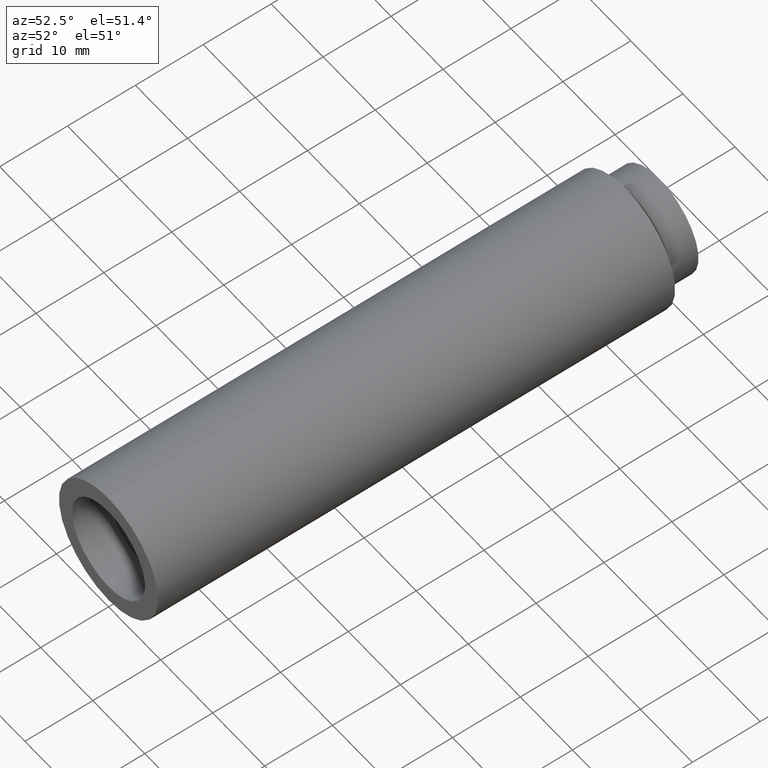
[diagram: clean part render]
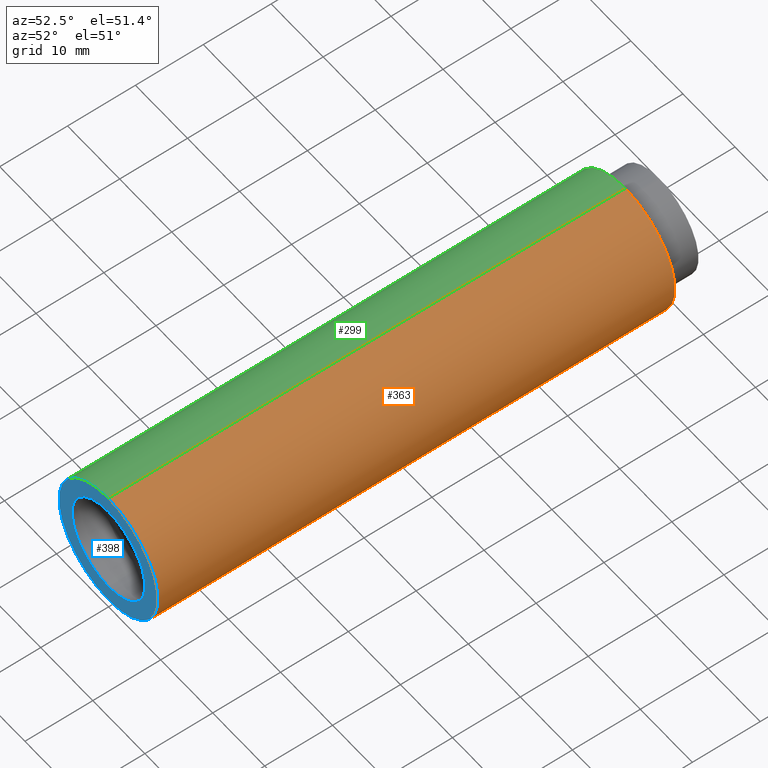
[diagram: same view with three faces highlighted in distinct colors, each labeled with its STEP entity id]
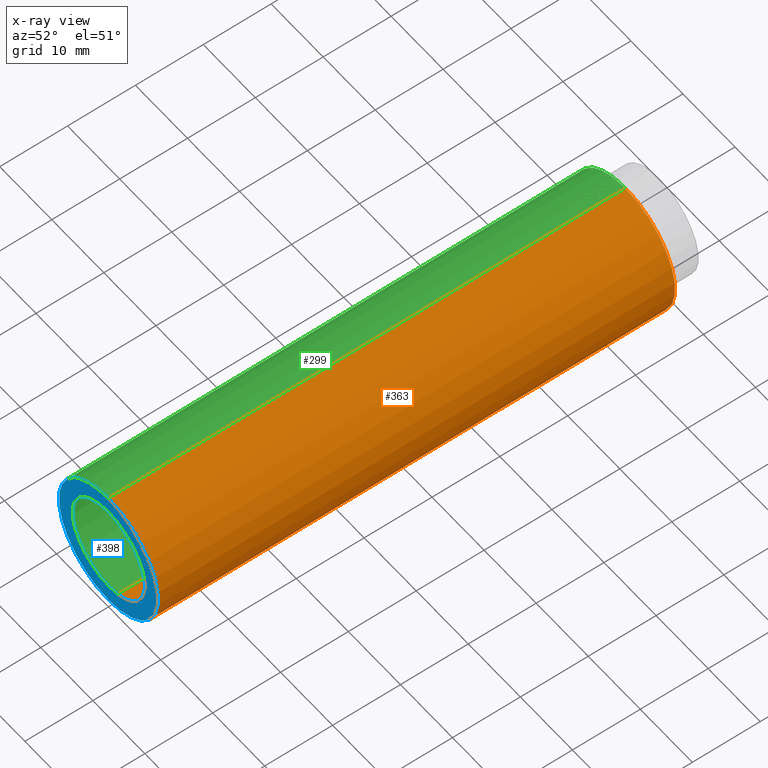
[diagram: x-ray of the same camera — body ghosted, the three highlighted faces saturated]
A machine part, auxiliary view with three faces highlighted in distinct colors.
The next image is the same camera in x-ray (body ghosted, the three faces saturated) — at least one of them is partly hidden behind the body in this view.
Their STEP definitions:

[orange] entity #363 — the highlighted cylindrical surface (partial cylindrical patch) has radius 9.525 mm, axis along (-0, 1, -0).
#15 = EDGE_CURVE ( 'NONE', #702, #97, #758, .T. ) ;
#27 = DIRECTION ( 'NONE',  ( -0.0000000000000000000, 1.000000000000000000, -0.0000000000000000000 ) ) ;
#32 = DIRECTION ( 'NONE',  ( -0.0000000000000000000, 1.000000000000000000, -0.0000000000000000000 ) ) ;
#46 = DIRECTION ( 'NONE',  ( -0.0000000000000000000, 1.000000000000000000, -0.0000000000000000000 ) ) ;
#57 = DIRECTION ( 'NONE',  ( -0.0000000000000000000, 1.000000000000000000, -0.0000000000000000000 ) ) ;
#81 = AXIS2_PLACEMENT_3D ( 'NONE', #756, #57, #635 ) ;
#97 = VERTEX_POINT ( 'NONE', #218 ) ;
#142 = VECTOR ( 'NONE', #27, 1000.000000000000000 ) ;
#152 = LINE ( 'NONE', #542, #567 ) ;
#200 = ORIENTED_EDGE ( 'NONE', *, *, #369, .F. ) ;
#218 = CARTESIAN_POINT ( 'NONE',  ( 1.166476076187855200E-015, 76.20000000000000300, -9.525000000000009200 ) ) ;
#264 = CIRCLE ( 'NONE', #677, 9.525000000000019900 ) ;
#277 = FACE_OUTER_BOUND ( 'NONE', #556, .T. ) ;
#349 = CIRCLE ( 'NONE', #81, 9.525000000000009200 ) ;
#350 = CARTESIAN_POINT ( 'NONE',  ( 0.0000000000000000000, -2.775557561562891400E-014, 0.0000000000000000000 ) ) ;
#355 = ORIENTED_EDGE ( 'NONE', *, *, #485, .T. ) ;
#363 = ADVANCED_FACE ( 'NONE', ( #277 ), #451, .T. ) ;
#369 = EDGE_CURVE ( 'NONE', #595, #616, #152, .T. ) ;
#412 = DIRECTION ( 'NONE',  ( 0.0000000000000000000, 0.0000000000000000000, 1.000000000000000000 ) ) ;
#436 = CARTESIAN_POINT ( 'NONE',  ( 1.166476076187856200E-015, -2.775557561562891400E-014, -9.525000000000018100 ) ) ;
#451 = CYLINDRICAL_SURFACE ( 'NONE', #536, 9.525000000000014600 ) ;
#485 = EDGE_CURVE ( 'NONE', #595, #702, #264, .T. ) ;
#497 = DIRECTION ( 'NONE',  ( 0.0000000000000000000, 0.0000000000000000000, 1.000000000000000000 ) ) ;
#530 = DIRECTION ( 'NONE',  ( -0.0000000000000000000, 1.000000000000000000, -0.0000000000000000000 ) ) ;
#536 = AXIS2_PLACEMENT_3D ( 'NONE', #600, #530, #412 ) ;
#542 = CARTESIAN_POINT ( 'NONE',  ( 0.0000000000000000000, 161.3761669434274500, 9.525000000000014600 ) ) ;
#556 = EDGE_LOOP ( 'NONE', ( #355, #720, #669, #200 ) ) ;
#563 = CARTESIAN_POINT ( 'NONE',  ( 0.0000000000000000000, 76.20000000000000300, 9.525000000000009200 ) ) ;
#567 = VECTOR ( 'NONE', #32, 1000.000000000000000 ) ;
#595 = VERTEX_POINT ( 'NONE', #609 ) ;
#600 = CARTESIAN_POINT ( 'NONE',  ( 0.0000000000000000000, 161.3761669434274500, 0.0000000000000000000 ) ) ;
#609 = CARTESIAN_POINT ( 'NONE',  ( 0.0000000000000000000, -2.775557561562891400E-014, 9.525000000000019900 ) ) ;
#616 = VERTEX_POINT ( 'NONE', #563 ) ;
#635 = DIRECTION ( 'NONE',  ( 0.0000000000000000000, 0.0000000000000000000, 1.000000000000000000 ) ) ;
#636 = EDGE_CURVE ( 'NONE', #616, #97, #349, .T. ) ;
#669 = ORIENTED_EDGE ( 'NONE', *, *, #636, .F. ) ;
#677 = AXIS2_PLACEMENT_3D ( 'NONE', #350, #46, #497 ) ;
#702 = VERTEX_POINT ( 'NONE', #436 ) ;
#720 = ORIENTED_EDGE ( 'NONE', *, *, #15, .T. ) ;
#756 = CARTESIAN_POINT ( 'NONE',  ( 0.0000000000000000000, 76.20000000000000300, 0.0000000000000000000 ) ) ;
#758 = LINE ( 'NONE', #772, #142 ) ;
#772 = CARTESIAN_POINT ( 'NONE',  ( 1.166476076187855600E-015, 161.3761669434274500, -9.525000000000014600 ) ) ;

[blue] entity #398 — the highlighted planar face has unit normal (-0, 1, 0).
#38 = DIRECTION ( 'NONE',  ( -0.0000000000000000000, 1.000000000000000000, -0.0000000000000000000 ) ) ;
#46 = DIRECTION ( 'NONE',  ( -0.0000000000000000000, 1.000000000000000000, -0.0000000000000000000 ) ) ;
#47 = CARTESIAN_POINT ( 'NONE',  ( 8.572527594031496900E-016, -2.775557561562891400E-014, -7.000000000000020400 ) ) ;
#92 = ORIENTED_EDGE ( 'NONE', *, *, #515, .F. ) ;
#107 = CARTESIAN_POINT ( 'NONE',  ( 0.0000000000000000000, -2.775557561562891400E-014, 0.0000000000000000000 ) ) ;
#118 = CARTESIAN_POINT ( 'NONE',  ( 0.0000000000000000000, -2.775557561562891400E-014, 0.0000000000000000000 ) ) ;
#131 = AXIS2_PLACEMENT_3D ( 'NONE', #118, #554, #180 ) ;
#171 = DIRECTION ( 'NONE',  ( 0.0000000000000000000, 0.0000000000000000000, 1.000000000000000000 ) ) ;
#180 = DIRECTION ( 'NONE',  ( 0.0000000000000000000, 0.0000000000000000000, 1.000000000000000000 ) ) ;
#202 = AXIS2_PLACEMENT_3D ( 'NONE', #107, #482, #596 ) ;
#211 = VERTEX_POINT ( 'NONE', #47 ) ;
#223 = CARTESIAN_POINT ( 'NONE',  ( 9.525000000000019900, -1.518912785978163900E-014, 0.0000000000000000000 ) ) ;
#264 = CIRCLE ( 'NONE', #677, 9.525000000000019900 ) ;
#297 = VERTEX_POINT ( 'NONE', #666 ) ;
#321 = ORIENTED_EDGE ( 'NONE', *, *, #389, .T. ) ;
#345 = DIRECTION ( 'NONE',  ( 0.0000000000000000000, 0.0000000000000000000, 1.000000000000000000 ) ) ;
#350 = CARTESIAN_POINT ( 'NONE',  ( 0.0000000000000000000, -2.775557561562891400E-014, 0.0000000000000000000 ) ) ;
#389 = EDGE_CURVE ( 'NONE', #211, #297, #779, .T. ) ;
#398 = ADVANCED_FACE ( 'NONE', ( #651, #808 ), #399, .F. ) ;
#399 = PLANE ( 'NONE',  #498 ) ;
#407 = CARTESIAN_POINT ( 'NONE',  ( 0.0000000000000000000, -2.775557561562891400E-014, 0.0000000000000000000 ) ) ;
#431 = CIRCLE ( 'NONE', #131, 9.525000000000019900 ) ;
#436 = CARTESIAN_POINT ( 'NONE',  ( 1.166476076187856200E-015, -2.775557561562891400E-014, -9.525000000000018100 ) ) ;
#439 = EDGE_CURVE ( 'NONE', #297, #211, #625, .T. ) ;
#462 = EDGE_LOOP ( 'NONE', ( #765, #321 ) ) ;
#482 = DIRECTION ( 'NONE',  ( -0.0000000000000000000, 1.000000000000000000, -0.0000000000000000000 ) ) ;
#485 = EDGE_CURVE ( 'NONE', #595, #702, #264, .T. ) ;
#497 = DIRECTION ( 'NONE',  ( 0.0000000000000000000, 0.0000000000000000000, 1.000000000000000000 ) ) ;
#498 = AXIS2_PLACEMENT_3D ( 'NONE', #223, #664, #345 ) ;
#509 = ORIENTED_EDGE ( 'NONE', *, *, #485, .F. ) ;
#515 = EDGE_CURVE ( 'NONE', #702, #595, #431, .T. ) ;
#522 = AXIS2_PLACEMENT_3D ( 'NONE', #407, #38, #171 ) ;
#554 = DIRECTION ( 'NONE',  ( -0.0000000000000000000, 1.000000000000000000, -0.0000000000000000000 ) ) ;
#595 = VERTEX_POINT ( 'NONE', #609 ) ;
#596 = DIRECTION ( 'NONE',  ( 0.0000000000000000000, 0.0000000000000000000, 1.000000000000000000 ) ) ;
#609 = CARTESIAN_POINT ( 'NONE',  ( 0.0000000000000000000, -2.775557561562891400E-014, 9.525000000000019900 ) ) ;
#625 = CIRCLE ( 'NONE', #522, 7.000000000000020400 ) ;
#651 = FACE_OUTER_BOUND ( 'NONE', #763, .T. ) ;
#664 = DIRECTION ( 'NONE',  ( -0.0000000000000000000, 1.000000000000000000, 0.0000000000000000000 ) ) ;
#666 = CARTESIAN_POINT ( 'NONE',  ( 0.0000000000000000000, -2.775557561562891400E-014, 7.000000000000020400 ) ) ;
#677 = AXIS2_PLACEMENT_3D ( 'NONE', #350, #46, #497 ) ;
#702 = VERTEX_POINT ( 'NONE', #436 ) ;
#763 = EDGE_LOOP ( 'NONE', ( #509, #92 ) ) ;
#765 = ORIENTED_EDGE ( 'NONE', *, *, #439, .T. ) ;
#779 = CIRCLE ( 'NONE', #202, 7.000000000000020400 ) ;
#808 = FACE_BOUND ( 'NONE', #462, .T. ) ;

[green] entity #299 — the highlighted cylindrical surface (partial cylindrical patch) has radius 9.525 mm, axis along (-0, 1, -0).
#9 = EDGE_LOOP ( 'NONE', ( #167, #25, #665, #637 ) ) ;
#15 = EDGE_CURVE ( 'NONE', #702, #97, #758, .T. ) ;
#23 = DIRECTION ( 'NONE',  ( -0.0000000000000000000, 1.000000000000000000, -0.0000000000000000000 ) ) ;
#25 = ORIENTED_EDGE ( 'NONE', *, *, #515, .T. ) ;
#27 = DIRECTION ( 'NONE',  ( -0.0000000000000000000, 1.000000000000000000, -0.0000000000000000000 ) ) ;
#32 = DIRECTION ( 'NONE',  ( -0.0000000000000000000, 1.000000000000000000, -0.0000000000000000000 ) ) ;
#89 = DIRECTION ( 'NONE',  ( 0.0000000000000000000, 0.0000000000000000000, 1.000000000000000000 ) ) ;
#97 = VERTEX_POINT ( 'NONE', #218 ) ;
#109 = AXIS2_PLACEMENT_3D ( 'NONE', #336, #23, #89 ) ;
#118 = CARTESIAN_POINT ( 'NONE',  ( 0.0000000000000000000, -2.775557561562891400E-014, 0.0000000000000000000 ) ) ;
#131 = AXIS2_PLACEMENT_3D ( 'NONE', #118, #554, #180 ) ;
#142 = VECTOR ( 'NONE', #27, 1000.000000000000000 ) ;
#152 = LINE ( 'NONE', #542, #567 ) ;
#167 = ORIENTED_EDGE ( 'NONE', *, *, #15, .F. ) ;
#178 = DIRECTION ( 'NONE',  ( -0.0000000000000000000, 1.000000000000000000, -0.0000000000000000000 ) ) ;
#180 = DIRECTION ( 'NONE',  ( 0.0000000000000000000, 0.0000000000000000000, 1.000000000000000000 ) ) ;
#218 = CARTESIAN_POINT ( 'NONE',  ( 1.166476076187855200E-015, 76.20000000000000300, -9.525000000000009200 ) ) ;
#254 = CYLINDRICAL_SURFACE ( 'NONE', #771, 9.525000000000014600 ) ;
#299 = ADVANCED_FACE ( 'NONE', ( #435 ), #254, .T. ) ;
#336 = CARTESIAN_POINT ( 'NONE',  ( 0.0000000000000000000, 76.20000000000000300, 0.0000000000000000000 ) ) ;
#369 = EDGE_CURVE ( 'NONE', #595, #616, #152, .T. ) ;
#418 = CIRCLE ( 'NONE', #109, 9.525000000000009200 ) ;
#431 = CIRCLE ( 'NONE', #131, 9.525000000000019900 ) ;
#435 = FACE_OUTER_BOUND ( 'NONE', #9, .T. ) ;
#436 = CARTESIAN_POINT ( 'NONE',  ( 1.166476076187856200E-015, -2.775557561562891400E-014, -9.525000000000018100 ) ) ;
#515 = EDGE_CURVE ( 'NONE', #702, #595, #431, .T. ) ;
#542 = CARTESIAN_POINT ( 'NONE',  ( 0.0000000000000000000, 161.3761669434274500, 9.525000000000014600 ) ) ;
#554 = DIRECTION ( 'NONE',  ( -0.0000000000000000000, 1.000000000000000000, -0.0000000000000000000 ) ) ;
#563 = CARTESIAN_POINT ( 'NONE',  ( 0.0000000000000000000, 76.20000000000000300, 9.525000000000009200 ) ) ;
#567 = VECTOR ( 'NONE', #32, 1000.000000000000000 ) ;
#595 = VERTEX_POINT ( 'NONE', #609 ) ;
#609 = CARTESIAN_POINT ( 'NONE',  ( 0.0000000000000000000, -2.775557561562891400E-014, 9.525000000000019900 ) ) ;
#616 = VERTEX_POINT ( 'NONE', #563 ) ;
#637 = ORIENTED_EDGE ( 'NONE', *, *, #801, .F. ) ;
#665 = ORIENTED_EDGE ( 'NONE', *, *, #369, .T. ) ;
#702 = VERTEX_POINT ( 'NONE', #436 ) ;
#725 = CARTESIAN_POINT ( 'NONE',  ( 0.0000000000000000000, 161.3761669434274500, 0.0000000000000000000 ) ) ;
#736 = DIRECTION ( 'NONE',  ( 0.0000000000000000000, 0.0000000000000000000, 1.000000000000000000 ) ) ;
#758 = LINE ( 'NONE', #772, #142 ) ;
#771 = AXIS2_PLACEMENT_3D ( 'NONE', #725, #178, #736 ) ;
#772 = CARTESIAN_POINT ( 'NONE',  ( 1.166476076187855600E-015, 161.3761669434274500, -9.525000000000014600 ) ) ;
#801 = EDGE_CURVE ( 'NONE', #97, #616, #418, .T. ) ;